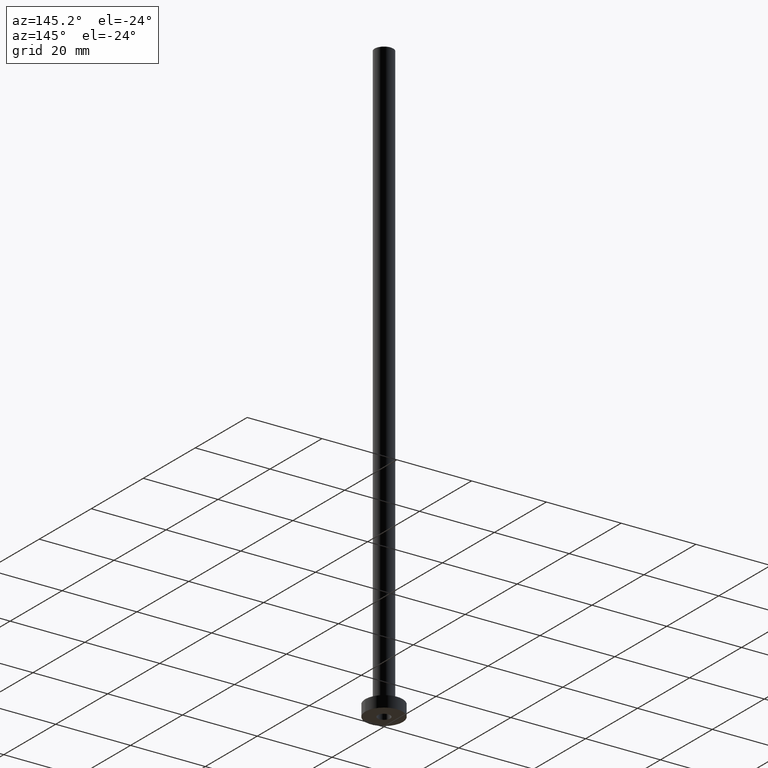
[diagram: clean part render]
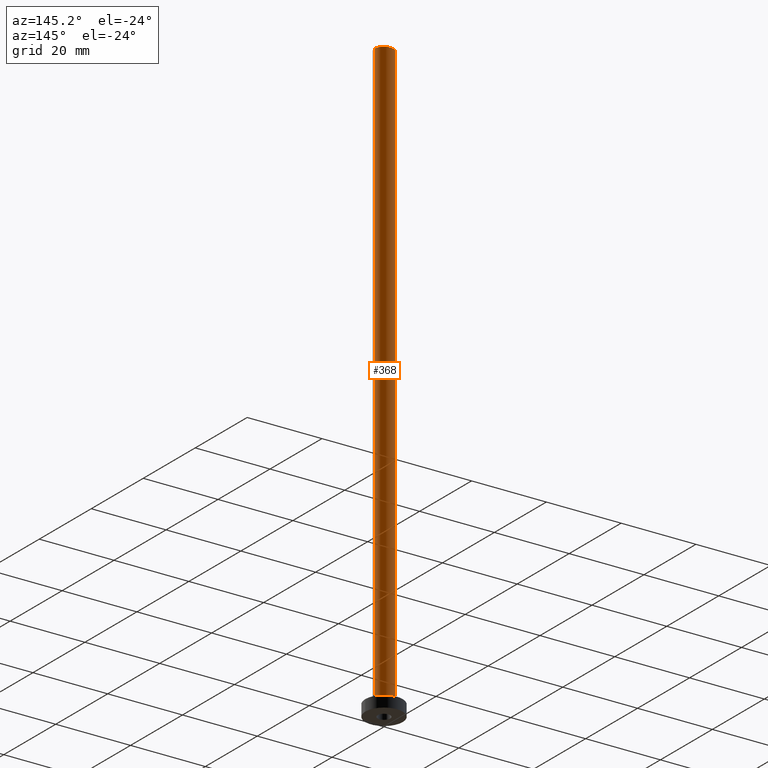
[diagram: same view with one face highlighted and labeled with its STEP entity id]
A machine part, auxiliary view. The second image highlights one B-rep face of the part: STEP entity #368.
In plain terms, the highlighted cylindrical surface (edge-blend (fillet) strip) has radius 2.5 mm, axis along (-0, -0, -1).
Its self-contained STEP definition (entity closure, byte-faithful):
#4 = AXIS2_PLACEMENT_3D ( 'NONE', #27, #64, #416 ) ;
#6 = CARTESIAN_POINT ( 'NONE',  ( 2.500000000000000000, 3.061616997868383141E-16, 160.0000000000000000 ) ) ;
#14 = ORIENTED_EDGE ( 'NONE', *, *, #42, .T. ) ;
#20 = VERTEX_POINT ( 'NONE', #376 ) ;
#27 = CARTESIAN_POINT ( 'NONE',  ( 0.000000000000000000, 0.000000000000000000, 160.0000000000000000 ) ) ;
#34 = AXIS2_PLACEMENT_3D ( 'NONE', #206, #373, #50 ) ;
#42 = EDGE_CURVE ( 'NONE', #187, #128, #160, .T. ) ;
#50 = DIRECTION ( 'NONE',  ( -1.000000000000000000, 0.000000000000000000, 0.000000000000000000 ) ) ;
#62 = CYLINDRICAL_SURFACE ( 'NONE', #34, 2.500000000000000000 ) ;
#64 = DIRECTION ( 'NONE',  ( 0.000000000000000000, 0.000000000000000000, 1.000000000000000000 ) ) ;
#79 = VECTOR ( 'NONE', #155, 1000.000000000000000 ) ;
#93 = VERTEX_POINT ( 'NONE', #286 ) ;
#97 = DIRECTION ( 'NONE',  ( -0.000000000000000000, -0.000000000000000000, -1.000000000000000000 ) ) ;
#98 = EDGE_CURVE ( 'NONE', #187, #20, #140, .T. ) ;
#125 = CARTESIAN_POINT ( 'NONE',  ( 0.000000000000000000, 0.000000000000000000, 3.299999999999997158 ) ) ;
#128 = VERTEX_POINT ( 'NONE', #276 ) ;
#129 = ORIENTED_EDGE ( 'NONE', *, *, #331, .F. ) ;
#136 = ORIENTED_EDGE ( 'NONE', *, *, #399, .T. ) ;
#140 = CIRCLE ( 'NONE', #4, 2.500000000000000000 ) ;
#142 = LINE ( 'NONE', #344, #79 ) ;
#155 = DIRECTION ( 'NONE',  ( -0.000000000000000000, -0.000000000000000000, -1.000000000000000000 ) ) ;
#160 = LINE ( 'NONE', #305, #223 ) ;
#163 = DIRECTION ( 'NONE',  ( 0.000000000000000000, 0.000000000000000000, 1.000000000000000000 ) ) ;
#178 = ORIENTED_EDGE ( 'NONE', *, *, #98, .F. ) ;
#187 = VERTEX_POINT ( 'NONE', #6 ) ;
#206 = CARTESIAN_POINT ( 'NONE',  ( 0.000000000000000000, 0.000000000000000000, 160.0000000000000000 ) ) ;
#223 = VECTOR ( 'NONE', #97, 1000.000000000000000 ) ;
#248 = EDGE_LOOP ( 'NONE', ( #178, #14, #136, #129 ) ) ;
#250 = CIRCLE ( 'NONE', #388, 2.500000000000000000 ) ;
#276 = CARTESIAN_POINT ( 'NONE',  ( 2.500000000000000000, 3.061616997868383141E-16, 3.299999999999997158 ) ) ;
#286 = CARTESIAN_POINT ( 'NONE',  ( -2.500000000000000000, 0.000000000000000000, 3.299999999999997158 ) ) ;
#305 = CARTESIAN_POINT ( 'NONE',  ( 2.500000000000000000, 3.061616997868383141E-16, 160.0000000000000000 ) ) ;
#331 = EDGE_CURVE ( 'NONE', #20, #93, #142, .T. ) ;
#344 = CARTESIAN_POINT ( 'NONE',  ( -2.500000000000000000, 0.000000000000000000, 160.0000000000000000 ) ) ;
#368 = ADVANCED_FACE ( 'NONE', ( #444 ), #62, .T. ) ;
#373 = DIRECTION ( 'NONE',  ( -0.000000000000000000, -0.000000000000000000, -1.000000000000000000 ) ) ;
#376 = CARTESIAN_POINT ( 'NONE',  ( -2.500000000000000000, 0.000000000000000000, 160.0000000000000000 ) ) ;
#388 = AXIS2_PLACEMENT_3D ( 'NONE', #125, #163, #404 ) ;
#399 = EDGE_CURVE ( 'NONE', #128, #93, #250, .T. ) ;
#404 = DIRECTION ( 'NONE',  ( 1.000000000000000000, 0.000000000000000000, 0.000000000000000000 ) ) ;
#416 = DIRECTION ( 'NONE',  ( 1.000000000000000000, 0.000000000000000000, 0.000000000000000000 ) ) ;
#444 = FACE_OUTER_BOUND ( 'NONE', #248, .T. ) ;